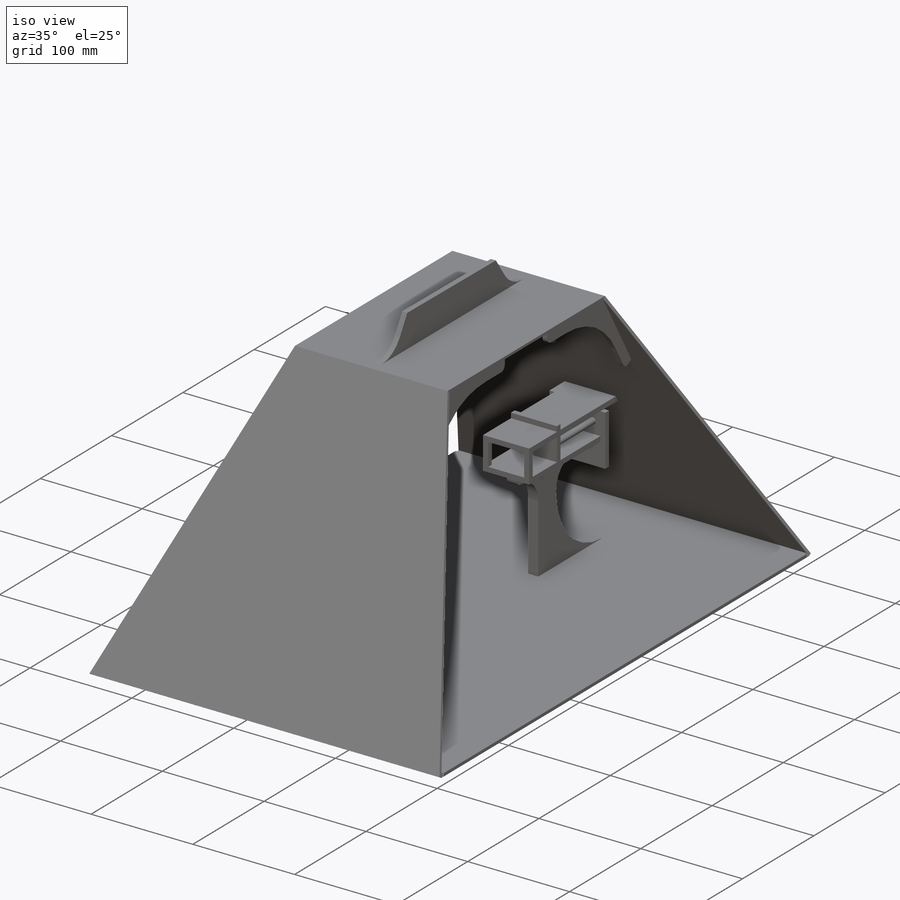
[diagram: iso view]
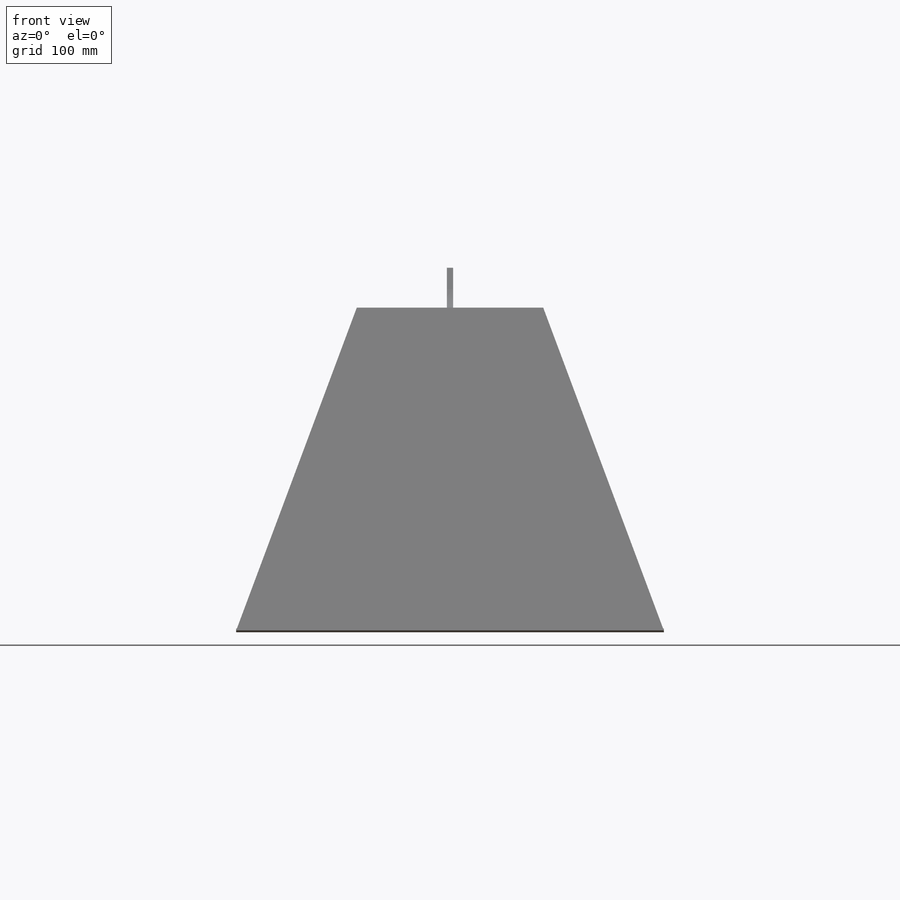
[diagram: front view]
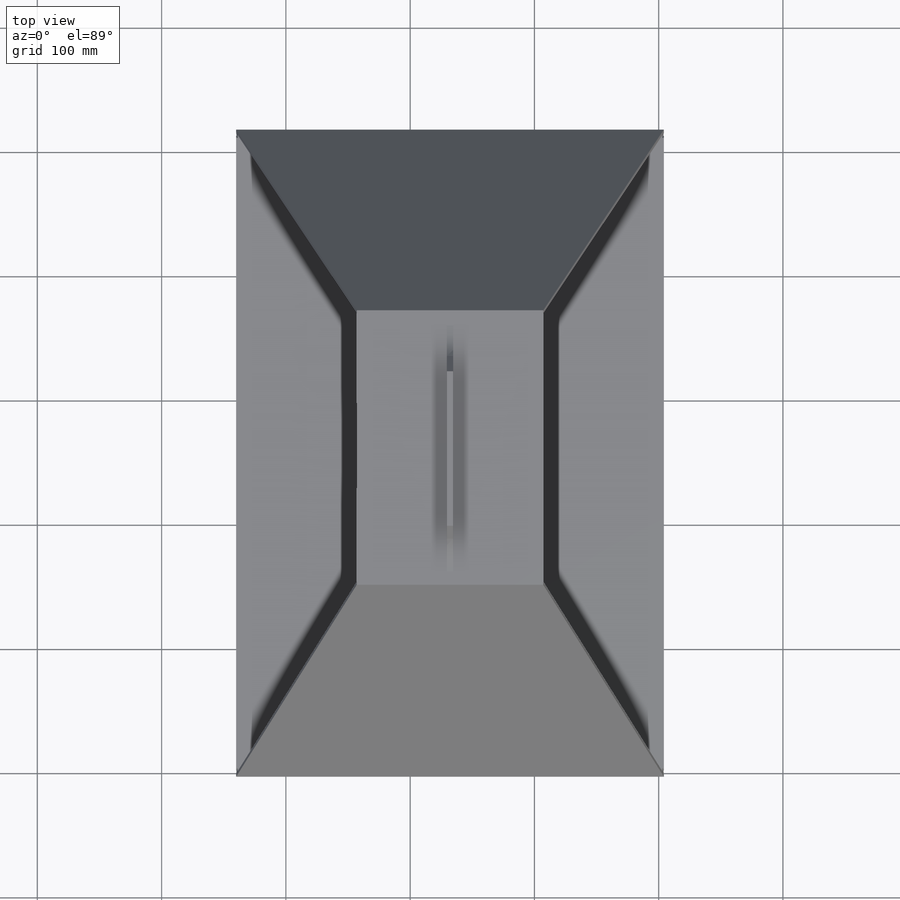
[diagram: top view]
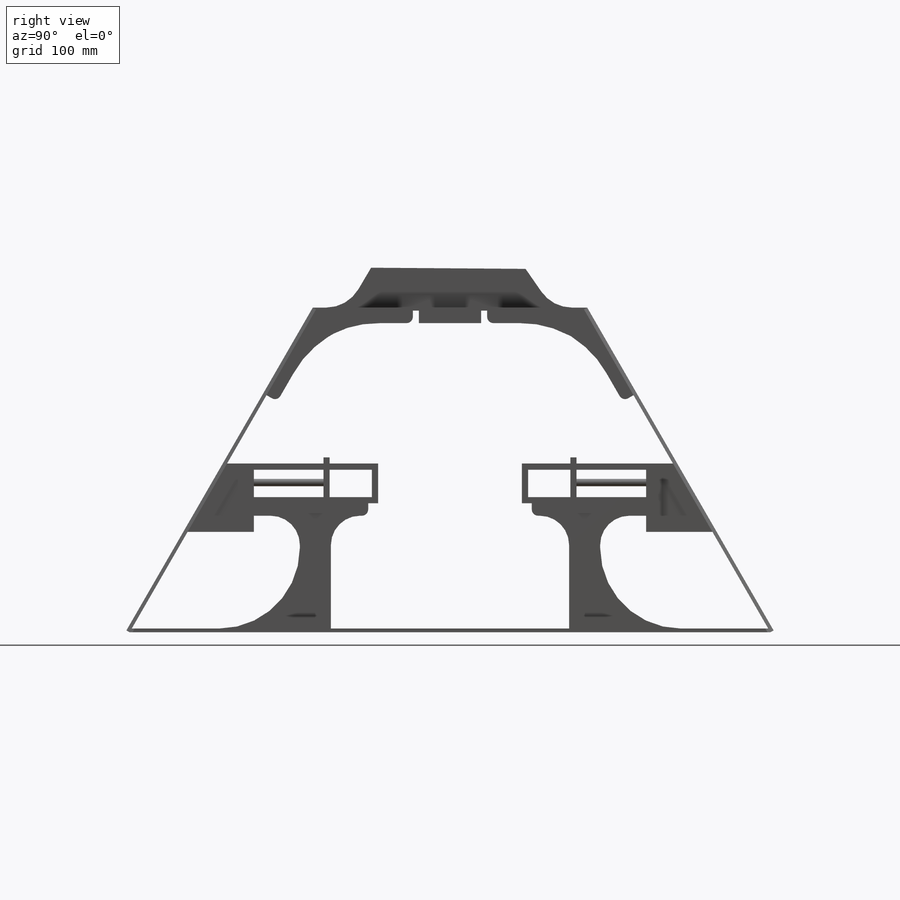
[diagram: right view]
SOLIDWORKS PART (.sldprt)
format: sldprt  version: not decoded by parser v0  size: 870,400 bytes
history: native  units: mm
features: sketch x24, extrude x18, plane x7, fillet x7, cut_extrude x5, move_body x2, material x1, boolean_combine x1 (+11 scaffold rows collapsed)
feature tree (76):
  scaffold x11  (default folders/planes/origin — collapsed)
  material  "Material <not specified>"
  sketch  "Sketch2"  dims[D1=~393.943426mm]
  plane  "Plane1"
  sketch  "Sketch3"  dims[c1.D1=~300.33917mm c1.D2=~43.30287mm c2.D1=~141.628193mm c2.D2=~141.82683mm c3.D1=300.0mm c3.D2=40.0mm c3.D3=~56.689238mm c4.D2=40.0mm]
  extrude  "Boss-Extrude1"  Depth=3mm
  sketch  "Sketch4"  dims[D1=140.0mm D2=5.0mm D3=100.0mm D4=5.0mm]
  extrude  "Boss-Extrude2"  [1 undecoded]
  sketch  "Sketch5"  dims[D1=~45.211946mm D2=5.0mm D3=~45.211946mm]
  extrude  "Boss-Extrude3"  Depth=100mm
  sketch  "Sketch6"  dims[D1=22.0mm]
  extrude  "Boss-Extrude4"  Depth=100mm
  sketch  "Sketch7"  dims[D1=5.0mm D2=50.0mm]
  extrude  "Boss-Extrude5"  Depth=50mm
  sketch  "Sketch8"  dims[D1=56.0mm D2=5.0mm]
  extrude  "Boss-Extrude6"  Depth=5mm
  sketch  "Sketch9"  dims[c1.D1=~154.330127mm c1.D2=300.0mm c2.D1=400.0mm c2.D2=270.0deg c3.D2=~1144.535546mm c3.D1=400.0mm]
  extrude  "Boss-Extrude7"  Depth=3mm
  sketch  "Sketch10"  dims[D1=6.0mm D2=30.0mm D3=~109.691159mm]
  extrude  "Boss-Extrude8"  [1 undecoded]
  plane  "Plane2"  Offset=0mm
  sketch  "Sketch20"  dims[D1=~21.594597mm]
  cut_extrude  "Cut-Extrude3"  Depth=5mm
  sketch  "Sketch23"  dims[D1=150.0mm D2=300.0mm]
  cut_extrude  "Cut-Extrude6"  Depth=5mm
  sketch  "Sketch24"  dims[D1=~75.802142mm]
  cut_extrude  "Cut-Extrude7"  Depth=5mm
  sketch  "Sketch25"  dims[c1.D1=~33.50257mm c1.D2=~19.627768mm c2.D1=10.0mm c2.D2=25.0mm c2.D3=38.0mm]
  extrude  "Boss-Extrude12"  [1 undecoded]
  fillet  "Fillet4"  Radius=65mm
  plane  "Plane3"  Offset=0mm
  sketch  "Sketch26"  dims[c1.D1=42.0mm c2.D1=90.0deg c3.D1=10.0mm]
  extrude  "Boss-Extrude13"  [1 undecoded]
  fillet  "Fillet5"  Radius=23.5mm
  sketch  "Sketch27"  dims[c1.D1=~12.62977mm c1.D2=~25.141395mm c2.D1=30.0mm c2.D2=10.0mm c2.D3=10.0mm]
  extrude  "Boss-Extrude14"  [1 undecoded]
  fillet  "Fillet6"  Radius=23.5mm
  fillet  "Fillet7"  Radius=5mm
  sketch  "Sketch29"  dims[c1.D1=~7.671995mm c1.D2=~7.180766mm c2.D1=~7.671995mm c2.D2=~8.906917mm c3.D1=~29.867956mm c3.D2=~29.867956mm c4.D1=5.0mm]
  extrude  "Boss-Extrude15"  [1 undecoded]
  move_body  "Body-Move/Copy5"
  boolean_combine  "Combine2"
  plane  "Plane4"
  sketch  "Sketch30"  dims[D1=~224.330127mm]
  extrude  "Boss-Extrude16"  Depth=2.5mm
  plane  "Plane6"  Offset=80mm
  sketch  "Sketch33"  dims[c1.D1=10.0mm c1.D2=26.0mm c1.D3=60.0deg c2.D1=10.0mm c2.D2=26.0mm c2.D3=60.0deg]
  extrude  "Boss-Extrude17"  Depth=5mm
  plane  "Plane7"  Offset=50mm
  sketch  "Sketch34"  dims[c1.D1=~6.392877mm c1.D2=~164.369434mm c2.D1=10.0mm c2.D2=~81.115102mm c3.D1=10.0mm c3.D2=26.0mm c3.D3=~65.490884mm c4.D3=60.0deg c4.D4=~65.490884mm c5.D4=240.0deg c6.D4=~66.899999mm]
  extrude  "Boss-Extrude18"  Depth=5mm
  sketch  "Sketch36"  dims[c1.D1=~49.238045mm c1.D2=~41.151495mm c2.D1=90.0deg c3.D1=50.0mm c3.D2=50.0mm c3.D3=90.0mm c4.D2=~221.520273mm c4.D1=~41.466001mm c5.D2=~37.220815mm c5.D1=50.0mm c6.D2=~294.823514mm c6.D1=~59.010916mm c7.D2=~39.185738mm c7.D1=~37.924737mm c8.D2=~47.449427mm c8.D1=50.0mm]
  extrude  "Boss-Extrude19"  Depth=10mm
  sketch  "Sketch37"  dims[c1.D1=~164.86124mm c1.D2=~18.317916mm c2.D1=5.0mm c2.D2=90.0deg c3.D2=~164.86124mm c3.D3=~303.544166mm]
  extrude  "Boss-Extrude20"  Depth=70mm
  sketch  "Sketch38"  dims[D1=~277.371017mm]
  cut_extrude  "Cut-Extrude8"  [1 undecoded]
  fillet  "Fillet8"  Radius=30mm
  fillet  "Fillet9"  Radius=30mm
  plane  "Plane8"
  sketch  "Sketch41"
  move_body  "Block1-2"
  extrude  "Boss-Extrude21"  Depth=5mm
  sketch  "Sketch42"  dims[D1=~20.117037mm]
  cut_extrude  "Cut-Extrude9"  Depth=5mm
  fillet  "Fillet10"  Radius=5mm
decode coverage: 46 of 57 modeling features carry decoded parameters
note: ~ marks probable driven/reference dimensions
note: 7 parameter values undecoded
summary: no parameter record found for 7 features
note: suppression state not decoded; provenance and decode notes live in map.json
